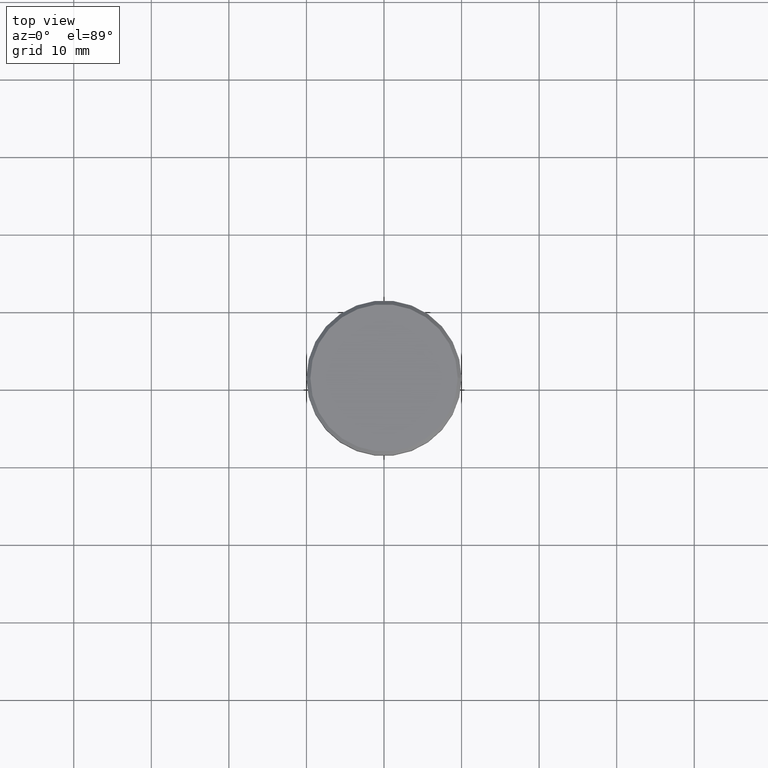
[diagram: clean part render]
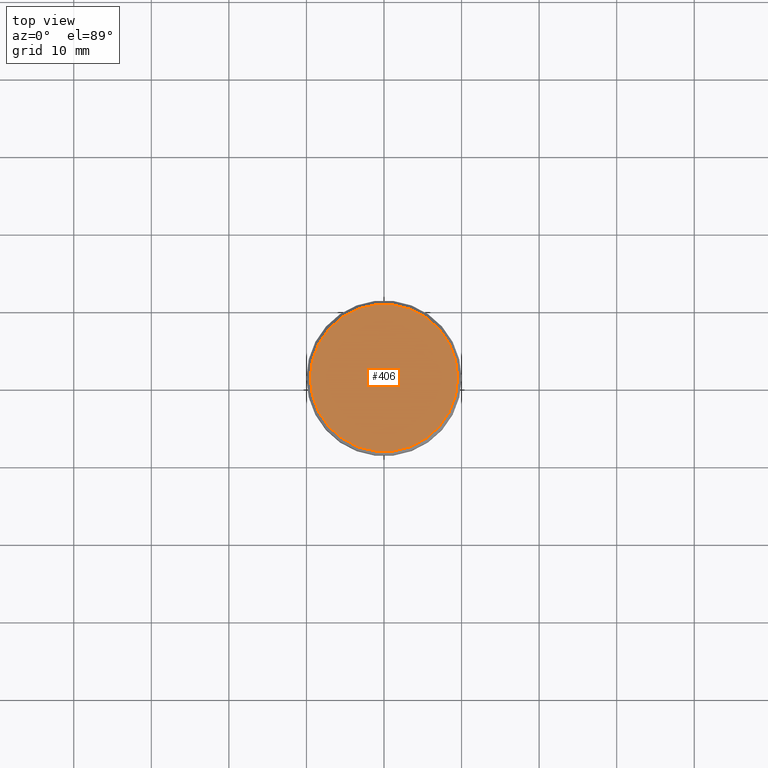
[diagram: same view with one face highlighted and labeled with its STEP entity id]
A machine part, top view. The second image highlights one B-rep face of the part: STEP entity #406.
In plain terms, the highlighted planar face has unit normal (0, -0, 1).
Its self-contained STEP definition (entity closure, byte-faithful):
#24 = CIRCLE ( 'NONE', #515, 9.499999999999994671 ) ;
#89 = DIRECTION ( 'NONE',  ( -0.000000000000000000, -0.000000000000000000, 1.000000000000000000 ) ) ;
#117 = EDGE_CURVE ( 'NONE', #208, #200, #24, .T. ) ;
#134 = EDGE_CURVE ( 'NONE', #200, #208, #507, .T. ) ;
#180 = DIRECTION ( 'NONE',  ( -0.000000000000000000, -0.000000000000000000, 1.000000000000000000 ) ) ;
#200 = VERTEX_POINT ( 'NONE', #235 ) ;
#208 = VERTEX_POINT ( 'NONE', #326 ) ;
#223 = DIRECTION ( 'NONE',  ( 1.000000000000000000, 0.000000000000000000, 0.000000000000000000 ) ) ;
#235 = CARTESIAN_POINT ( 'NONE',  ( 9.499999999999994671, 1.194030629168669075E-15, 0.000000000000000000 ) ) ;
#292 = DIRECTION ( 'NONE',  ( 1.000000000000000000, 0.000000000000000000, 0.000000000000000000 ) ) ;
#295 = AXIS2_PLACEMENT_3D ( 'NONE', #484, #346, #292 ) ;
#311 = CARTESIAN_POINT ( 'NONE',  ( 0.000000000000000000, 0.000000000000000000, 0.000000000000000000 ) ) ;
#326 = CARTESIAN_POINT ( 'NONE',  ( -9.499999999999994671, 0.000000000000000000, 0.000000000000000000 ) ) ;
#342 = ORIENTED_EDGE ( 'NONE', *, *, #117, .T. ) ;
#346 = DIRECTION ( 'NONE',  ( 0.000000000000000000, -0.000000000000000000, 1.000000000000000000 ) ) ;
#369 = DIRECTION ( 'NONE',  ( 1.000000000000000000, 0.000000000000000000, 0.000000000000000000 ) ) ;
#406 = ADVANCED_FACE ( 'NONE', ( #576 ), #574, .T. ) ;
#439 = AXIS2_PLACEMENT_3D ( 'NONE', #311, #180, #369 ) ;
#446 = EDGE_LOOP ( 'NONE', ( #342, #552 ) ) ;
#458 = CARTESIAN_POINT ( 'NONE',  ( 0.000000000000000000, 0.000000000000000000, 0.000000000000000000 ) ) ;
#484 = CARTESIAN_POINT ( 'NONE',  ( 0.000000000000000000, 0.000000000000000000, 0.000000000000000000 ) ) ;
#507 = CIRCLE ( 'NONE', #439, 9.499999999999994671 ) ;
#515 = AXIS2_PLACEMENT_3D ( 'NONE', #458, #89, #223 ) ;
#552 = ORIENTED_EDGE ( 'NONE', *, *, #134, .T. ) ;
#574 = PLANE ( 'NONE',  #295 ) ;
#576 = FACE_OUTER_BOUND ( 'NONE', #446, .T. ) ;